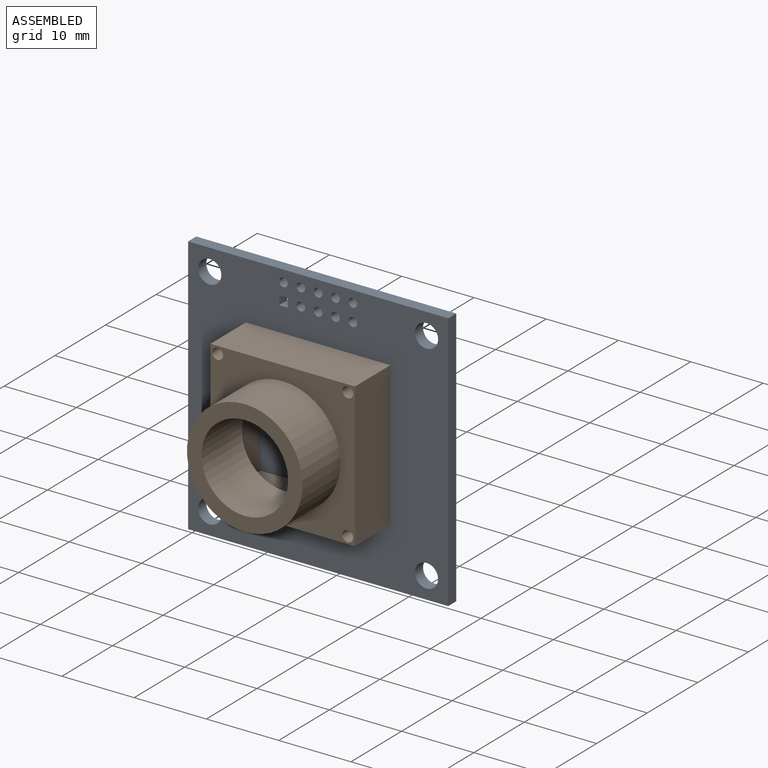
[diagram: assembled view]
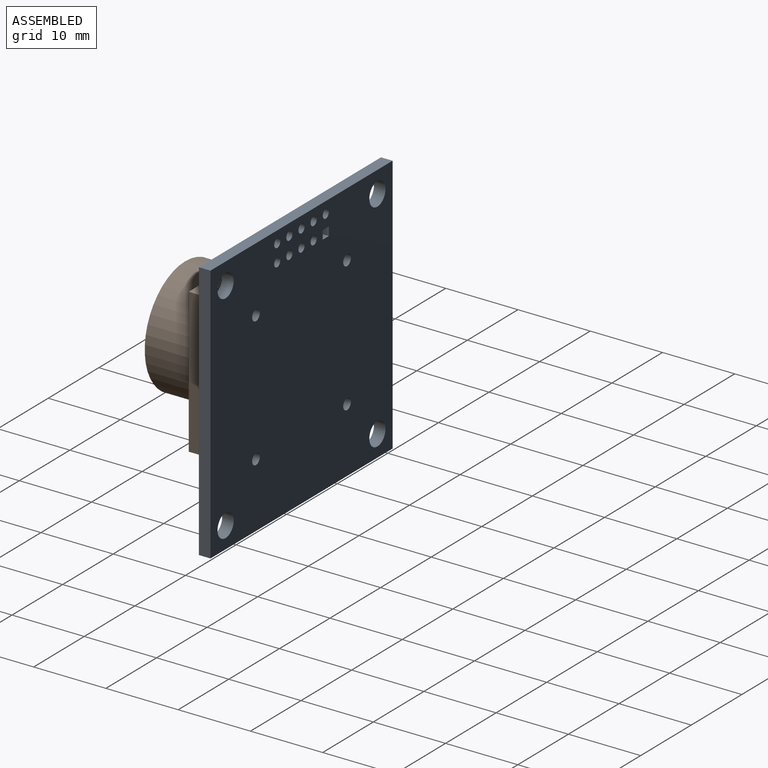
[diagram: assembled view, second angle]
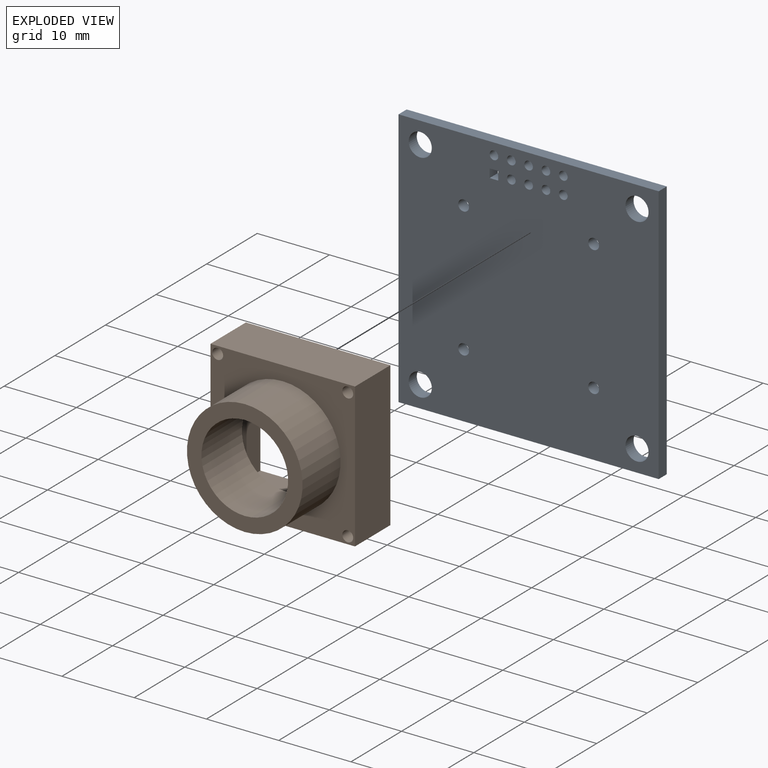
[diagram: exploded view]
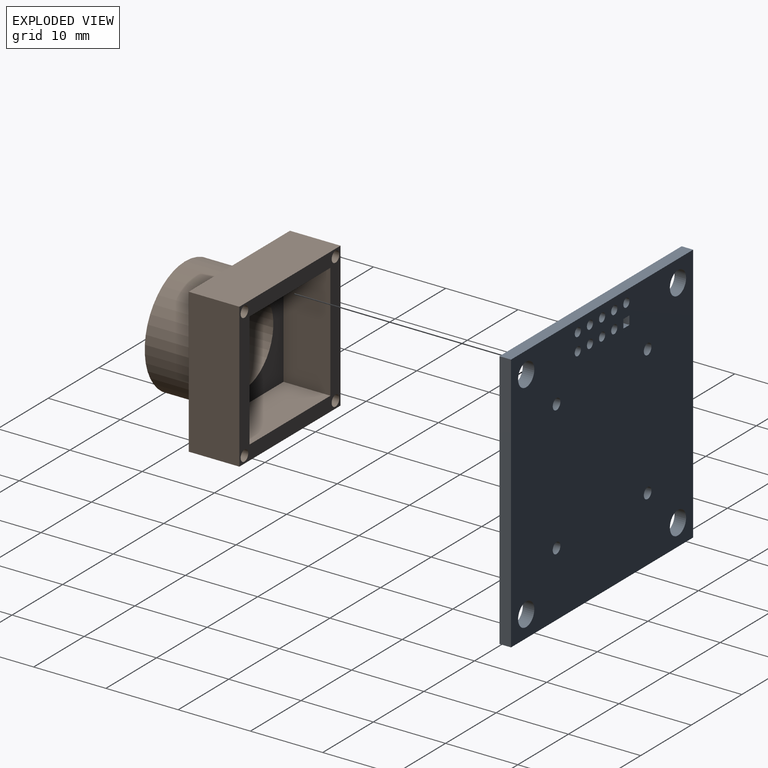
[diagram: exploded view, second angle]
ASSEMBLY  parts=2 mates=3
PART A: 27 faces, bbox 36x1.6x36 mm
  f0: plane 36x36mm, normal (0,-1,0), area 1245.1mm2, adj f2,f3,f4,f5,f6,f7,f8,f9
  f1: plane 36x36mm, normal (0,1,0), area 1245.1mm2, adj f2,f3,f4,f5,f6,f7,f8,f9
  f2: plane 36x1.6mm, normal (1,0,0), area 57.6mm2, adj f0,f1,f3,f5
  f3: plane 36x1.6mm, normal (0,0,1), area 57.6mm2, adj f0,f1,f2,f4
  f4: plane 36x1.6mm, normal (-1,0,0), area 57.6mm2, adj f0,f1,f3,f5
  f5: plane 36x1.6mm, normal (0,0,-1), area 57.6mm2, adj f0,f1,f2,f4
  f6: cylinder r=0.75mm len=1.6mm, axis (0,-1,0), area 7.5mm2, adj f0,f1
  f7: cylinder r=0.75mm len=1.6mm, axis (0,-1,0), area 7.5mm2, adj f0,f1
  f8: cylinder r=0.75mm len=1.6mm, axis (0,-1,0), area 7.5mm2, adj f0,f1
  f9: cylinder r=0.75mm len=1.6mm, axis (0,-1,0), area 7.5mm2, adj f0,f1
  f10: cylinder r=1.6mm len=3.2mm, axis (0,-1,0), area 16.1mm2, adj f0,f1
  f11: cylinder r=1.6mm len=3.2mm, axis (0,-1,0), area 16.1mm2, adj f0,f1
  f12: cylinder r=1.6mm len=3.2mm, axis (0,-1,0), area 16.1mm2, adj f0,f1
  f13: cylinder r=1.6mm len=3.2mm, axis (0,-1,0), area 16.1mm2, adj f0,f1
  f14: cylinder r=0.6mm len=1.6mm, axis (0,-1,0), area 6mm2, adj f0,f1
  f15: cylinder r=0.6mm len=1.6mm, axis (0,-1,0), area 6mm2, adj f0,f1
  f16: cylinder r=0.6mm len=1.6mm, axis (0,-1,0), area 6mm2, adj f0,f1
  f17: cylinder r=0.6mm len=1.6mm, axis (0,-1,0), area 6mm2, adj f0,f1
  f18: cylinder r=0.6mm len=1.6mm, axis (0,-1,0), area 6mm2, adj f0,f1
  f19: cylinder r=0.6mm len=1.6mm, axis (0,-1,0), area 6mm2, adj f0,f1
  f20: cylinder r=0.6mm len=1.6mm, axis (0,-1,0), area 6mm2, adj f0,f1
  f21: cylinder r=0.6mm len=1.6mm, axis (0,-1,0), area 6mm2, adj f0,f1
  f22: cylinder r=0.6mm len=1.6mm, axis (0,-1,0), area 6mm2, adj f0,f1
  f23: plane 1.6x1.2mm, normal (-1,0,0), area 1.9mm2, adj f0,f1,f24,f26
  f24: plane 1.6x1.2mm, normal (0,0,-1), area 1.9mm2, adj f0,f1,f23,f25
  f25: plane 1.6x1.2mm, normal (1,0,0), area 1.9mm2, adj f0,f1,f24,f26
  f26: plane 1.6x1.2mm, normal (0,0,1), area 1.9mm2, adj f0,f1,f23,f25
PART B: 18 faces, bbox 20x14.5x20 mm
  f0: plane 20x20mm, normal (0,1,0), area 136.9mm2, adj f2,f3,f4,f5,f9,f10,f11,f12
  f1: cylinder r=6mm len=12mm, axis (0,-1,0), area 301.6mm2, adj f8,f13
  f2: plane 20x7mm, normal (1,0,0), area 140mm2, adj f0,f3,f5,f6
  f3: plane 20x7mm, normal (0,0,1), area 140mm2, adj f0,f2,f4,f6
  f4: plane 20x7mm, normal (-1,0,0), area 140mm2, adj f0,f3,f5,f6
  f5: plane 20x7mm, normal (0,0,-1), area 140mm2, adj f0,f2,f4,f6
  f6: plane 20x20mm, normal (0,-1,0), area 191.9mm2, adj f2,f3,f4,f5,f7,f9,f10,f11
  f7: cylinder r=8mm len=16mm, axis (0,1,0), area 377mm2, adj f6,f8
  f8: plane 16x16mm, normal (0,-1,0), area 88mm2, adj f1,f7
  f9: cylinder r=0.75mm len=7mm, axis (0,-1,0), area 33mm2, adj f0,f6
  f10: cylinder r=0.75mm len=7mm, axis (0,-1,0), area 33mm2, adj f0,f6
  f11: cylinder r=0.75mm len=7mm, axis (0,-1,0), area 33mm2, adj f0,f6
  f12: cylinder r=0.75mm len=7mm, axis (0,-1,0), area 33mm2, adj f0,f6
  f13: plane 16x16mm, normal (0,1,0), area 142.9mm2, adj f1,f14,f15,f16,f17
  f14: plane 16x6.5mm, normal (1,0,0), area 104mm2, adj f0,f13,f15,f17
  f15: plane 16x6.5mm, normal (0,0,-1), area 104mm2, adj f0,f13,f14,f16
  f16: plane 16x6.5mm, normal (-1,0,0), area 104mm2, adj f0,f13,f15,f17
  f17: plane 16x6.5mm, normal (0,0,1), area 104mm2, adj f0,f13,f14,f16
PLACE A t=(-1.93,0.72,1.54)mm fixed
PLACE B t=(-1.93,-0.88,1.54)mm
MATE slider B.f11 <-> A.f8  axis (0,-1,0) through (7.07,-7.88,-7.46)mm
MATE planar A.f0 <-> B.f0  axis (0,-1,0) through (-1.92,-0.88,1.4)mm
MATE slider B.f10 <-> A.f7  axis (0,-1,0) through (7.07,-7.88,10.54)mm
